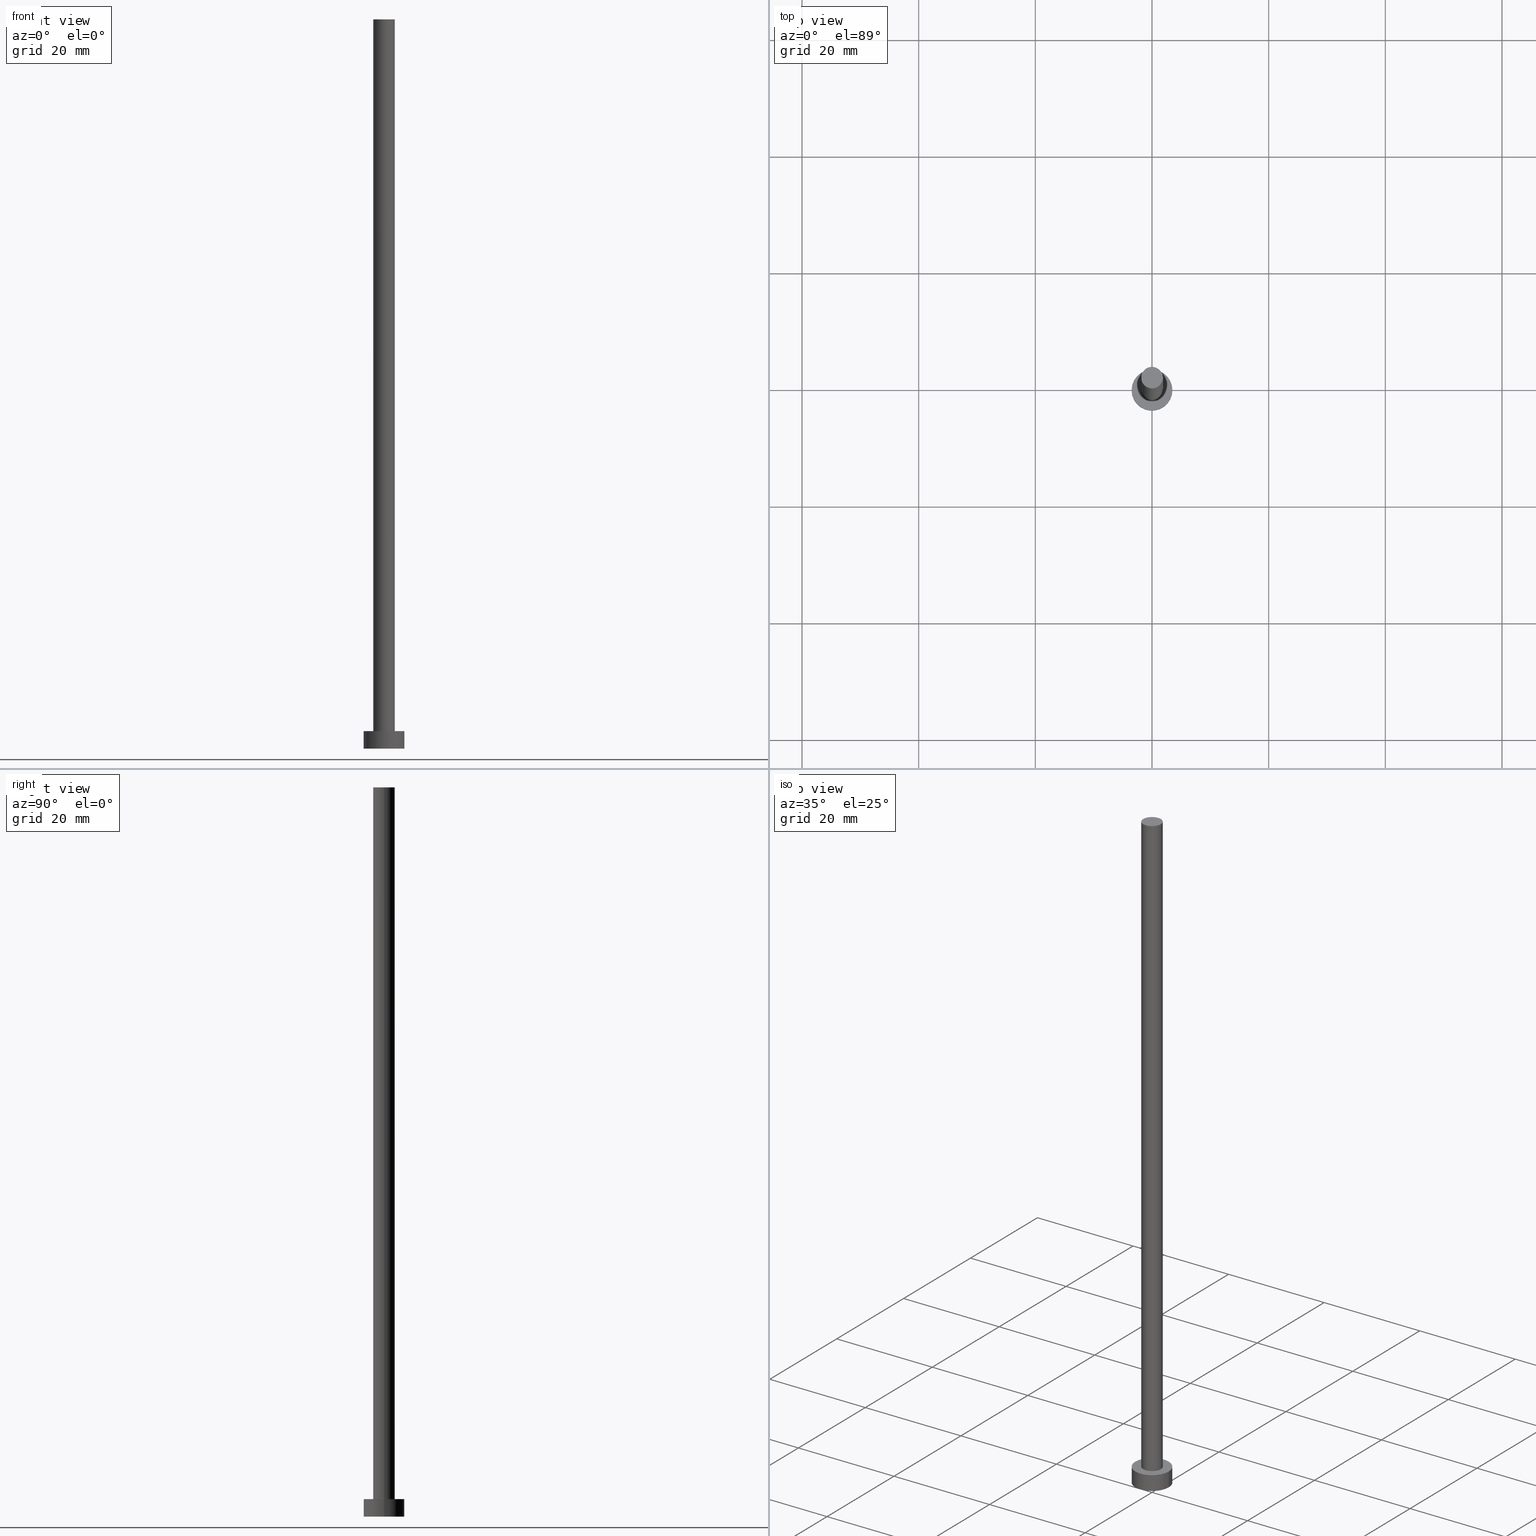
[diagram: canonical four-view strip — front | top / right | iso, engineering-drawing reading convention]
A machine part, canonical four-view strip (front | top / right | iso — engineering-drawing reading convention). The complete STEP part file that produces these views, byte-faithful:
ISO-10303-21;
HEADER;
FILE_DESCRIPTION (( 'STEP AP203' ),
    '1' );
FILE_NAME ('e5c8.STEP',
    '2026-02-06T12:43:17',
    ( '' ),
    ( '' ),
    'SwSTEP 2.0',
    'SolidWorks 2019',
    '' );
FILE_SCHEMA (( 'CONFIG_CONTROL_DESIGN' ));
ENDSEC;

DATA;
#1 = ADVANCED_FACE ( 'NONE', ( #174 ), #222, .F. ) ;
#2 = COORDINATED_UNIVERSAL_TIME_OFFSET ( 1, 0, .AHEAD. ) ;
#3 = APPROVAL_ROLE ( '' ) ;
#4 = CC_DESIGN_PERSON_AND_ORGANIZATION_ASSIGNMENT ( #98, #218, ( #120 ) ) ;
#5 = CIRCLE ( 'NONE', #13, 3.500000000000000444 ) ;
#6 = DIRECTION ( 'NONE',  ( 0.000000000000000000, 0.000000000000000000, 1.000000000000000000 ) ) ;
#7 = CC_DESIGN_DATE_AND_TIME_ASSIGNMENT ( #237, #119, ( #147 ) ) ;
#8 = AXIS2_PLACEMENT_3D ( 'NONE', #27, #6, #240 ) ;
#9 = PRODUCT ( 'e5c8', 'e5c8', '', ( #197 ) ) ;
#10 = CARTESIAN_POINT ( 'NONE',  ( -1.850000000000000089, 0.000000000000000000, 3.000000000000000000 ) ) ;
#11 = DIRECTION ( 'NONE',  ( -0.000000000000000000, -0.000000000000000000, -1.000000000000000000 ) ) ;
#12 = VERTEX_POINT ( 'NONE', #49 ) ;
#13 = AXIS2_PLACEMENT_3D ( 'NONE', #110, #168, #54 ) ;
#14 = DIRECTION ( 'NONE',  ( 1.000000000000000000, 0.000000000000000000, 0.000000000000000000 ) ) ;
#15 = CARTESIAN_POINT ( 'NONE',  ( 0.000000000000000000, 0.000000000000000000, 3.000000000000000000 ) ) ;
#16 = CARTESIAN_POINT ( 'NONE',  ( 0.000000000000000000, 0.000000000000000000, 125.0000000000000000 ) ) ;
#17 = ORIENTED_EDGE ( 'NONE', *, *, #163, .T. ) ;
#18 = CARTESIAN_POINT ( 'NONE',  ( 0.000000000000000000, 0.000000000000000000, 125.0000000000000000 ) ) ;
#19 = APPROVAL_PERSON_ORGANIZATION ( #26, #132, #3 ) ;
#20 = COORDINATED_UNIVERSAL_TIME_OFFSET ( 1, 0, .AHEAD. ) ;
#21 = ADVANCED_FACE ( 'NONE', ( #88 ), #122, .T. ) ;
#22 = CALENDAR_DATE ( 2026, 6, 2 ) ;
#23 = CC_DESIGN_PERSON_AND_ORGANIZATION_ASSIGNMENT ( #153, #227, ( #246 ) ) ;
#24 = PERSON_AND_ORGANIZATION ( #245, #130 ) ;
#25 = AXIS2_PLACEMENT_3D ( 'NONE', #102, #156, #212 ) ;
#26 = PERSON_AND_ORGANIZATION ( #245, #130 ) ;
#27 = CARTESIAN_POINT ( 'NONE',  ( 0.000000000000000000, 0.000000000000000000, 3.000000000000000000 ) ) ;
#28 = AXIS2_PLACEMENT_3D ( 'NONE', #249, #161, #158 ) ;
#29 = EDGE_CURVE ( 'NONE', #133, #214, #89, .T. ) ;
#30 = UNCERTAINTY_MEASURE_WITH_UNIT (LENGTH_MEASURE( 1.000000000000000082E-05 ), #248, 'distance_accuracy_value', 'NONE');
#31 = DIRECTION ( 'NONE',  ( -0.000000000000000000, -0.000000000000000000, -1.000000000000000000 ) ) ;
#32 = CIRCLE ( 'NONE', #157, 3.500000000000000444 ) ;
#33 = APPROVAL_PERSON_ORGANIZATION ( #162, #232, #217 ) ;
#34 = CARTESIAN_POINT ( 'NONE',  ( 0.000000000000000000, 0.000000000000000000, 3.000000000000000000 ) ) ;
#35 = APPROVAL_DATE_TIME ( #125, #99 ) ;
#36 = DIRECTION ( 'NONE',  ( 1.000000000000000000, 0.000000000000000000, 0.000000000000000000 ) ) ;
#37 = FACE_OUTER_BOUND ( 'NONE', #148, .T. ) ;
#38 = CARTESIAN_POINT ( 'NONE',  ( 0.000000000000000000, 0.000000000000000000, 3.000000000000000000 ) ) ;
#39 = FACE_BOUND ( 'NONE', #179, .T. ) ;
#40 = ORIENTED_EDGE ( 'NONE', *, *, #163, .F. ) ;
#41 = CC_DESIGN_PERSON_AND_ORGANIZATION_ASSIGNMENT ( #44, #183, ( #120 ) ) ;
#42 = VERTEX_POINT ( 'NONE', #108 ) ;
#43 = PERSON_AND_ORGANIZATION_ROLE ( 'classification_officer' ) ;
#44 = PERSON_AND_ORGANIZATION ( #245, #130 ) ;
#45 = VECTOR ( 'NONE', #11, 1000.000000000000000 ) ;
#46 = SECURITY_CLASSIFICATION_LEVEL ( 'unclassified' ) ;
#47 = CARTESIAN_POINT ( 'NONE',  ( 0.000000000000000000, 0.000000000000000000, 0.000000000000000000 ) ) ;
#48 = CIRCLE ( 'NONE', #115, 1.850000000000000089 ) ;
#49 = CARTESIAN_POINT ( 'NONE',  ( 3.500000000000000444, 4.286263797015737088E-16, 0.000000000000000000 ) ) ;
#50 = CALENDAR_DATE ( 2026, 6, 2 ) ;
#51 = CARTESIAN_POINT ( 'NONE',  ( 0.000000000000000000, 0.000000000000000000, 3.000000000000000000 ) ) ;
#52 = DIRECTION ( 'NONE',  ( -0.000000000000000000, -0.000000000000000000, -1.000000000000000000 ) ) ;
#53 = ADVANCED_FACE ( 'NONE', ( #68 ), #198, .T. ) ;
#54 = DIRECTION ( 'NONE',  ( 1.000000000000000000, 0.000000000000000000, 0.000000000000000000 ) ) ;
#55 = EDGE_LOOP ( 'NONE', ( #234, #140 ) ) ;
#56 = DIRECTION ( 'NONE',  ( 0.000000000000000000, 0.000000000000000000, 1.000000000000000000 ) ) ;
#57 = EDGE_LOOP ( 'NONE', ( #251, #230 ) ) ;
#58 = CIRCLE ( 'NONE', #220, 3.500000000000000444 ) ;
#59 = CC_DESIGN_APPROVAL ( #99, ( #246 ) ) ;
#60 = DIRECTION ( 'NONE',  ( 1.000000000000000000, 0.000000000000000000, -0.000000000000000000 ) ) ;
#61 = COORDINATED_UNIVERSAL_TIME_OFFSET ( 1, 0, .AHEAD. ) ;
#62 = APPROVAL_STATUS ( 'not_yet_approved' ) ;
#63 = CC_DESIGN_APPROVAL ( #132, ( #147 ) ) ;
#64 = EDGE_CURVE ( 'NONE', #113, #96, #219, .T. ) ;
#65 = APPLICATION_PROTOCOL_DEFINITION ( 'international standard', 'config_control_design', 1994, #239 ) ;
#66 = DIRECTION ( 'NONE',  ( 1.000000000000000000, 0.000000000000000000, 0.000000000000000000 ) ) ;
#67 = CARTESIAN_POINT ( 'NONE',  ( 0.000000000000000000, 0.000000000000000000, 125.0000000000000000 ) ) ;
#68 = FACE_OUTER_BOUND ( 'NONE', #137, .T. ) ;
#69 = PERSON_AND_ORGANIZATION_ROLE ( 'design_owner' ) ;
#70 = AXIS2_PLACEMENT_3D ( 'NONE', #18, #73, #60 ) ;
#71 = FACE_OUTER_BOUND ( 'NONE', #236, .T. ) ;
#72 = ORIENTED_EDGE ( 'NONE', *, *, #250, .F. ) ;
#73 = DIRECTION ( 'NONE',  ( 0.000000000000000000, 0.000000000000000000, 1.000000000000000000 ) ) ;
#74 = LINE ( 'NONE', #178, #101 ) ;
#75 = CC_DESIGN_PERSON_AND_ORGANIZATION_ASSIGNMENT ( #92, #69, ( #9 ) ) ;
#76 = EDGE_LOOP ( 'NONE', ( #199, #82, #195, #112 ) ) ;
#77 = FACE_OUTER_BOUND ( 'NONE', #55, .T. ) ;
#78 = AXIS2_PLACEMENT_3D ( 'NONE', #124, #31, #175 ) ;
#79 = EDGE_CURVE ( 'NONE', #42, #152, #48, .T. ) ;
#80 = CALENDAR_DATE ( 2026, 6, 2 ) ;
#81 = VECTOR ( 'NONE', #244, 1000.000000000000000 ) ;
#82 = ORIENTED_EDGE ( 'NONE', *, *, #79, .F. ) ;
#83 = LOCAL_TIME ( 13, 43, 17.00000000000000000, #94 ) ;
#84 = ADVANCED_FACE ( 'NONE', ( #77 ), #164, .T. ) ;
#85 = DIRECTION ( 'NONE',  ( 0.000000000000000000, 0.000000000000000000, 1.000000000000000000 ) ) ;
#86 = DIRECTION ( 'NONE',  ( 0.000000000000000000, 0.000000000000000000, 1.000000000000000000 ) ) ;
#87 = APPLICATION_PROTOCOL_DEFINITION ( 'international standard', 'config_control_design', 1994, #181 ) ;
#88 = FACE_OUTER_BOUND ( 'NONE', #76, .T. ) ;
#89 = CIRCLE ( 'NONE', #238, 1.850000000000000089 ) ;
#90 = DIRECTION ( 'NONE',  ( -1.000000000000000000, 0.000000000000000000, 0.000000000000000000 ) ) ;
#91 = EDGE_CURVE ( 'NONE', #113, #12, #159, .T. ) ;
#92 = PERSON_AND_ORGANIZATION ( #245, #130 ) ;
#93 = ORIENTED_EDGE ( 'NONE', *, *, #91, .F. ) ;
#94 = COORDINATED_UNIVERSAL_TIME_OFFSET ( 1, 0, .AHEAD. ) ;
#95 = ORIENTED_EDGE ( 'NONE', *, *, #224, .F. ) ;
#96 = VERTEX_POINT ( 'NONE', #216 ) ;
#97 = LOCAL_TIME ( 13, 43, 17.00000000000000000, #2 ) ;
#98 = PERSON_AND_ORGANIZATION ( #245, #130 ) ;
#99 = APPROVAL ( #176, 'NEUR�EN�' ) ;
#100 = AXIS2_PLACEMENT_3D ( 'NONE', #67, #127, #188 ) ;
#101 = VECTOR ( 'NONE', #189, 1000.000000000000000 ) ;
#102 = CARTESIAN_POINT ( 'NONE',  ( 0.000000000000000000, 0.000000000000000000, 0.000000000000000000 ) ) ;
#103 = DIRECTION ( 'NONE',  ( 0.000000000000000000, 0.000000000000000000, 1.000000000000000000 ) ) ;
#104 = DESIGN_CONTEXT ( 'detailed design', #181, 'design' ) ;
#105 = PLANE ( 'NONE',  #146 ) ;
#106 = CARTESIAN_POINT ( 'NONE',  ( 1.850000000000000089, 2.265596578422602607E-16, 125.0000000000000000 ) ) ;
#107 = CARTESIAN_POINT ( 'NONE',  ( 0.000000000000000000, 0.000000000000000000, 0.000000000000000000 ) ) ;
#108 = CARTESIAN_POINT ( 'NONE',  ( -1.850000000000000089, 0.000000000000000000, 125.0000000000000000 ) ) ;
#109 = CARTESIAN_POINT ( 'NONE',  ( 3.500000000000000444, 4.286263797015737088E-16, 3.000000000000000000 ) ) ;
#110 = CARTESIAN_POINT ( 'NONE',  ( 0.000000000000000000, 0.000000000000000000, 0.000000000000000000 ) ) ;
#111 = EDGE_CURVE ( 'NONE', #214, #133, #201, .T. ) ;
#112 = ORIENTED_EDGE ( 'NONE', *, *, #29, .T. ) ;
#113 = VERTEX_POINT ( 'NONE', #109 ) ;
#114 = DIRECTION ( 'NONE',  ( -0.000000000000000000, -0.000000000000000000, -1.000000000000000000 ) ) ;
#115 = AXIS2_PLACEMENT_3D ( 'NONE', #134, #213, #186 ) ;
#116 = APPROVAL_DATE_TIME ( #166, #132 ) ;
#117 = ORIENTED_EDGE ( 'NONE', *, *, #136, .F. ) ;
#118 = CALENDAR_DATE ( 2026, 6, 2 ) ;
#119 = DATE_TIME_ROLE ( 'classification_date' ) ;
#120 = PRODUCT_DEFINITION_FORMATION_WITH_SPECIFIED_SOURCE ( 'LIBOVOLN�', '', #9, .NOT_KNOWN. ) ;
#121 = APPROVAL_STATUS ( 'not_yet_approved' ) ;
#122 = CYLINDRICAL_SURFACE ( 'NONE', #78, 1.850000000000000089 ) ;
#123 =( NAMED_UNIT ( * ) PLANE_ANGLE_UNIT ( ) SI_UNIT ( $, .RADIAN. ) );
#124 = CARTESIAN_POINT ( 'NONE',  ( 0.000000000000000000, 0.000000000000000000, 125.0000000000000000 ) ) ;
#125 = DATE_AND_TIME ( #50, #229 ) ;
#126 = LINE ( 'NONE', #106, #81 ) ;
#127 = DIRECTION ( 'NONE',  ( 0.000000000000000000, 0.000000000000000000, 1.000000000000000000 ) ) ;
#128 = CYLINDRICAL_SURFACE ( 'NONE', #177, 3.500000000000000444 ) ;
#129 = CARTESIAN_POINT ( 'NONE',  ( 0.000000000000000000, 0.000000000000000000, 3.000000000000000000 ) ) ;
#130 = ORGANIZATION ( 'NEUR�EN�', 'NEUR�EN�', '' ) ;
#131 = DIRECTION ( 'NONE',  ( 0.000000000000000000, 0.000000000000000000, 1.000000000000000000 ) ) ;
#132 = APPROVAL ( #121, 'NEUR�EN�' ) ;
#133 = VERTEX_POINT ( 'NONE', #10 ) ;
#134 = CARTESIAN_POINT ( 'NONE',  ( 0.000000000000000000, 0.000000000000000000, 125.0000000000000000 ) ) ;
#135 = ORIENTED_EDGE ( 'NONE', *, *, #64, .F. ) ;
#136 = EDGE_CURVE ( 'NONE', #96, #113, #32, .T. ) ;
#137 = EDGE_LOOP ( 'NONE', ( #160, #190, #149, #255 ) ) ;
#138 = DIRECTION ( 'NONE',  ( -0.000000000000000000, -0.000000000000000000, -1.000000000000000000 ) ) ;
#139 = AXIS2_PLACEMENT_3D ( 'NONE', #16, #52, #231 ) ;
#140 = ORIENTED_EDGE ( 'NONE', *, *, #150, .T. ) ;
#141 = LOCAL_TIME ( 13, 43, 17.00000000000000000, #20 ) ;
#142 = EDGE_CURVE ( 'NONE', #152, #214, #126, .T. ) ;
#143 = CALENDAR_DATE ( 2026, 6, 2 ) ;
#144 = CC_DESIGN_SECURITY_CLASSIFICATION ( #147, ( #120 ) ) ;
#145 = ORIENTED_EDGE ( 'NONE', *, *, #29, .F. ) ;
#146 = AXIS2_PLACEMENT_3D ( 'NONE', #51, #200, #235 ) ;
#147 = SECURITY_CLASSIFICATION ( '', '', #46 ) ;
#148 = EDGE_LOOP ( 'NONE', ( #93, #117, #182, #17 ) ) ;
#149 = ORIENTED_EDGE ( 'NONE', *, *, #111, .T. ) ;
#150 = EDGE_CURVE ( 'NONE', #152, #42, #221, .T. ) ;
#151 = APPROVAL_ROLE ( '' ) ;
#152 = VERTEX_POINT ( 'NONE', #194 ) ;
#153 = PERSON_AND_ORGANIZATION ( #245, #130 ) ;
#154 = PRODUCT_DEFINITION_SHAPE ( 'NONE', 'NONE',  #246 ) ;
#155 = DIRECTION ( 'NONE',  ( 1.000000000000000000, 0.000000000000000000, 0.000000000000000000 ) ) ;
#156 = DIRECTION ( 'NONE',  ( 0.000000000000000000, 0.000000000000000000, 1.000000000000000000 ) ) ;
#157 = AXIS2_PLACEMENT_3D ( 'NONE', #15, #86, #66 ) ;
#158 = DIRECTION ( 'NONE',  ( -1.000000000000000000, 0.000000000000000000, 0.000000000000000000 ) ) ;
#159 = LINE ( 'NONE', #233, #228 ) ;
#160 = ORIENTED_EDGE ( 'NONE', *, *, #150, .F. ) ;
#161 = DIRECTION ( 'NONE',  ( -0.000000000000000000, -0.000000000000000000, -1.000000000000000000 ) ) ;
#162 = PERSON_AND_ORGANIZATION ( #245, #130 ) ;
#163 = EDGE_CURVE ( 'NONE', #204, #12, #5, .T. ) ;
#164 = PLANE ( 'NONE',  #70 ) ;
#165 = CC_DESIGN_APPROVAL ( #232, ( #120 ) ) ;
#166 = DATE_AND_TIME ( #22, #83 ) ;
#167 = DATE_TIME_ROLE ( 'creation_date' ) ;
#168 = DIRECTION ( 'NONE',  ( 0.000000000000000000, 0.000000000000000000, 1.000000000000000000 ) ) ;
#169 = SHAPE_DEFINITION_REPRESENTATION ( #154, #173 ) ;
#170 = AXIS2_PLACEMENT_3D ( 'NONE', #47, #85, #242 ) ;
#171 = ORIENTED_EDGE ( 'NONE', *, *, #111, .F. ) ;
#172 = EDGE_CURVE ( 'NONE', #42, #133, #192, .T. ) ;
#173 = ADVANCED_BREP_SHAPE_REPRESENTATION ( 'e5c8', ( #206, #25 ), #215 ) ;
#174 = FACE_OUTER_BOUND ( 'NONE', #247, .T. ) ;
#175 = DIRECTION ( 'NONE',  ( -1.000000000000000000, 0.000000000000000000, 0.000000000000000000 ) ) ;
#176 = APPROVAL_STATUS ( 'not_yet_approved' ) ;
#177 = AXIS2_PLACEMENT_3D ( 'NONE', #38, #114, #90 ) ;
#178 = CARTESIAN_POINT ( 'NONE',  ( -3.500000000000000444, 0.000000000000000000, 3.000000000000000000 ) ) ;
#179 = EDGE_LOOP ( 'NONE', ( #145, #171 ) ) ;
#180 = CARTESIAN_POINT ( 'NONE',  ( 1.850000000000000089, 2.265596578422602607E-16, 3.000000000000000000 ) ) ;
#181 = APPLICATION_CONTEXT ( 'configuration controlled 3d designs of mechanical parts and assemblies' ) ;
#182 = ORIENTED_EDGE ( 'NONE', *, *, #250, .T. ) ;
#183 = PERSON_AND_ORGANIZATION_ROLE ( 'creator' ) ;
#184 = DATE_AND_TIME ( #143, #97 ) ;
#185 = ADVANCED_FACE ( 'NONE', ( #71 ), #252, .T. ) ;
#186 = DIRECTION ( 'NONE',  ( 1.000000000000000000, 0.000000000000000000, 0.000000000000000000 ) ) ;
#187 = DATE_AND_TIME ( #118, #141 ) ;
#188 = DIRECTION ( 'NONE',  ( 1.000000000000000000, 0.000000000000000000, 0.000000000000000000 ) ) ;
#189 = DIRECTION ( 'NONE',  ( -0.000000000000000000, -0.000000000000000000, -1.000000000000000000 ) ) ;
#190 = ORIENTED_EDGE ( 'NONE', *, *, #142, .T. ) ;
#191 = ADVANCED_FACE ( 'NONE', ( #39, #226 ), #105, .T. ) ;
#192 = LINE ( 'NONE', #210, #45 ) ;
#193 = CLOSED_SHELL ( 'NONE', ( #53, #185, #208, #191, #1, #21, #84 ) ) ;
#194 = CARTESIAN_POINT ( 'NONE',  ( 1.850000000000000089, 2.265596578422602607E-16, 125.0000000000000000 ) ) ;
#195 = ORIENTED_EDGE ( 'NONE', *, *, #172, .T. ) ;
#196 = CARTESIAN_POINT ( 'NONE',  ( -3.500000000000000444, 0.000000000000000000, 0.000000000000000000 ) ) ;
#197 = MECHANICAL_CONTEXT ( 'NONE', #239, 'mechanical' ) ;
#198 = CYLINDRICAL_SURFACE ( 'NONE', #139, 1.850000000000000089 ) ;
#199 = ORIENTED_EDGE ( 'NONE', *, *, #142, .F. ) ;
#200 = DIRECTION ( 'NONE',  ( 0.000000000000000000, 0.000000000000000000, 1.000000000000000000 ) ) ;
#201 = CIRCLE ( 'NONE', #8, 1.850000000000000089 ) ;
#202 = APPROVAL_PERSON_ORGANIZATION ( #209, #99, #151 ) ;
#203 = ORIENTED_EDGE ( 'NONE', *, *, #91, .T. ) ;
#204 = VERTEX_POINT ( 'NONE', #196 ) ;
#205 = APPROVAL_DATE_TIME ( #184, #232 ) ;
#206 = MANIFOLD_SOLID_BREP ( 'P�idat vysunut�m3', #193 ) ;
#207 = CC_DESIGN_DATE_AND_TIME_ASSIGNMENT ( #187, #167, ( #246 ) ) ;
#208 = ADVANCED_FACE ( 'NONE', ( #37 ), #128, .T. ) ;
#209 = PERSON_AND_ORGANIZATION ( #245, #130 ) ;
#210 = CARTESIAN_POINT ( 'NONE',  ( -1.850000000000000089, 0.000000000000000000, 125.0000000000000000 ) ) ;
#211 =( NAMED_UNIT ( * ) SI_UNIT ( $, .STERADIAN. ) SOLID_ANGLE_UNIT ( ) );
#212 = DIRECTION ( 'NONE',  ( 1.000000000000000000, 0.000000000000000000, 0.000000000000000000 ) ) ;
#213 = DIRECTION ( 'NONE',  ( 0.000000000000000000, 0.000000000000000000, 1.000000000000000000 ) ) ;
#214 = VERTEX_POINT ( 'NONE', #180 ) ;
#215 =( GEOMETRIC_REPRESENTATION_CONTEXT ( 3 ) GLOBAL_UNCERTAINTY_ASSIGNED_CONTEXT ( ( #30 ) ) GLOBAL_UNIT_ASSIGNED_CONTEXT ( ( #248, #123, #211 ) ) REPRESENTATION_CONTEXT ( 'NONE', 'WORKASPACE' ) );
#216 = CARTESIAN_POINT ( 'NONE',  ( -3.500000000000000444, 0.000000000000000000, 3.000000000000000000 ) ) ;
#217 = APPROVAL_ROLE ( '' ) ;
#218 = PERSON_AND_ORGANIZATION_ROLE ( 'design_supplier' ) ;
#219 = CIRCLE ( 'NONE', #241, 3.500000000000000444 ) ;
#220 = AXIS2_PLACEMENT_3D ( 'NONE', #107, #131, #14 ) ;
#221 = CIRCLE ( 'NONE', #100, 1.850000000000000089 ) ;
#222 = PLANE ( 'NONE',  #170 ) ;
#223 = COORDINATED_UNIVERSAL_TIME_OFFSET ( 1, 0, .AHEAD. ) ;
#224 = EDGE_CURVE ( 'NONE', #12, #204, #58, .T. ) ;
#225 = ORIENTED_EDGE ( 'NONE', *, *, #224, .T. ) ;
#226 = FACE_OUTER_BOUND ( 'NONE', #57, .T. ) ;
#227 = PERSON_AND_ORGANIZATION_ROLE ( 'creator' ) ;
#228 = VECTOR ( 'NONE', #138, 1000.000000000000000 ) ;
#229 = LOCAL_TIME ( 13, 43, 17.00000000000000000, #223 ) ;
#230 = ORIENTED_EDGE ( 'NONE', *, *, #64, .T. ) ;
#231 = DIRECTION ( 'NONE',  ( -1.000000000000000000, 0.000000000000000000, 0.000000000000000000 ) ) ;
#232 = APPROVAL ( #62, 'NEUR�EN�' ) ;
#233 = CARTESIAN_POINT ( 'NONE',  ( 3.500000000000000444, 4.286263797015737088E-16, 3.000000000000000000 ) ) ;
#234 = ORIENTED_EDGE ( 'NONE', *, *, #79, .T. ) ;
#235 = DIRECTION ( 'NONE',  ( 1.000000000000000000, 0.000000000000000000, -0.000000000000000000 ) ) ;
#236 = EDGE_LOOP ( 'NONE', ( #135, #203, #225, #72 ) ) ;
#237 = DATE_AND_TIME ( #80, #254 ) ;
#238 = AXIS2_PLACEMENT_3D ( 'NONE', #34, #103, #36 ) ;
#239 = APPLICATION_CONTEXT ( 'configuration controlled 3d designs of mechanical parts and assemblies' ) ;
#240 = DIRECTION ( 'NONE',  ( 1.000000000000000000, 0.000000000000000000, 0.000000000000000000 ) ) ;
#241 = AXIS2_PLACEMENT_3D ( 'NONE', #129, #56, #155 ) ;
#242 = DIRECTION ( 'NONE',  ( 1.000000000000000000, 0.000000000000000000, -0.000000000000000000 ) ) ;
#243 = PRODUCT_RELATED_PRODUCT_CATEGORY ( 'detail', '', ( #9 ) ) ;
#244 = DIRECTION ( 'NONE',  ( -0.000000000000000000, -0.000000000000000000, -1.000000000000000000 ) ) ;
#245 = PERSON ( 'NEUR�EN�', 'NEUR�EN�', 'NEUR�EN�', ('NEUR�EN�'), ('NEUR�EN�'), ('NEUR�EN�') ) ;
#246 = PRODUCT_DEFINITION ( 'NEZN�M�', '', #120, #104 ) ;
#247 = EDGE_LOOP ( 'NONE', ( #40, #95 ) ) ;
#248 =( LENGTH_UNIT ( ) NAMED_UNIT ( * ) SI_UNIT ( .MILLI., .METRE. ) );
#249 = CARTESIAN_POINT ( 'NONE',  ( 0.000000000000000000, 0.000000000000000000, 3.000000000000000000 ) ) ;
#250 = EDGE_CURVE ( 'NONE', #96, #204, #74, .T. ) ;
#251 = ORIENTED_EDGE ( 'NONE', *, *, #136, .T. ) ;
#252 = CYLINDRICAL_SURFACE ( 'NONE', #28, 3.500000000000000444 ) ;
#253 = CC_DESIGN_PERSON_AND_ORGANIZATION_ASSIGNMENT ( #24, #43, ( #147 ) ) ;
#254 = LOCAL_TIME ( 13, 43, 17.00000000000000000, #61 ) ;
#255 = ORIENTED_EDGE ( 'NONE', *, *, #172, .F. ) ;
ENDSEC;
END-ISO-10303-21;
